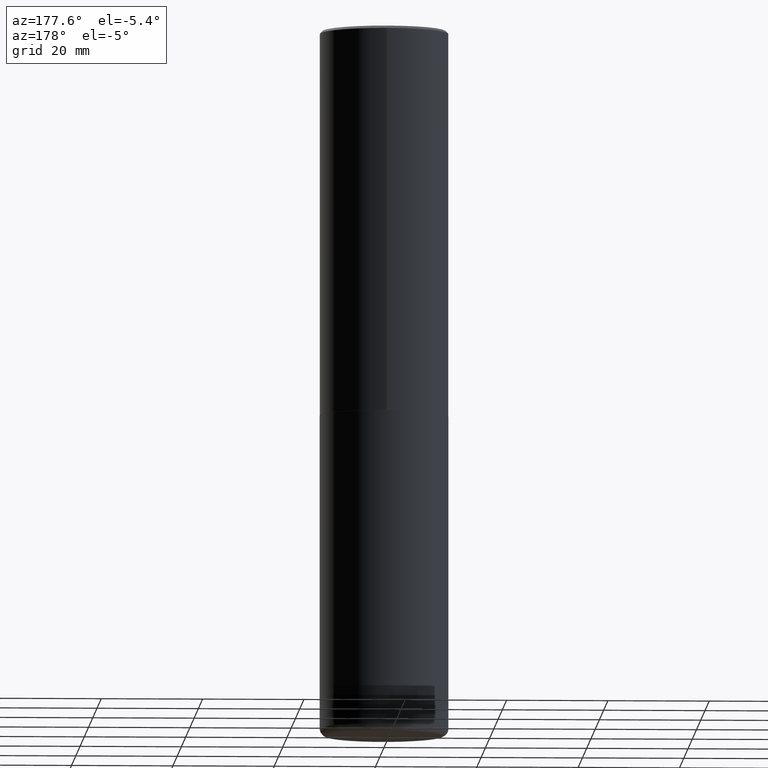
[diagram: clean part render]
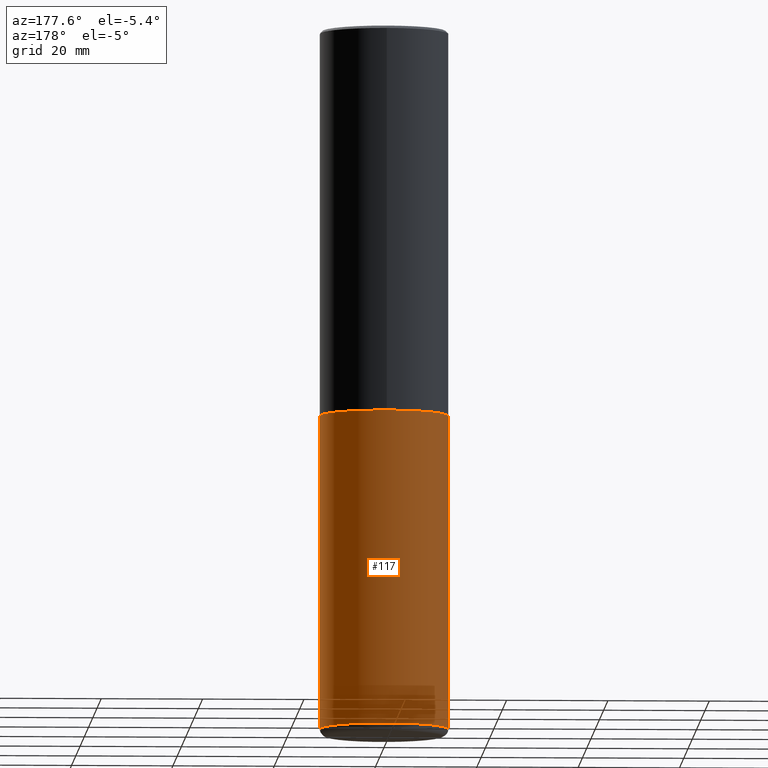
[diagram: same view with one face highlighted and labeled with its STEP entity id]
A machine part, auxiliary view. The second image highlights one B-rep face of the part: STEP entity #117.
In plain terms, the highlighted cylindrical surface (partial cylindrical patch) has radius 12.7 mm, axis along (-0, 0, 1).
Its self-contained STEP definition (entity closure, byte-faithful):
#2 = ORIENTED_EDGE ( 'NONE', *, *, #126, .T. ) ;
#10 = CARTESIAN_POINT ( 'NONE',  ( 0.5000000000000000000, -3.491481338843133355E-15, 2.438088387897967896E-29 ) ) ;
#36 = VERTEX_POINT ( 'NONE', #174 ) ;
#38 = CIRCLE ( 'NONE', #93, 0.5000000000000001110 ) ;
#48 = DIRECTION ( 'NONE',  ( 1.000000000000000000, -6.982962677686269077E-15, 0.000000000000000000 ) ) ;
#67 = FACE_OUTER_BOUND ( 'NONE', #313, .T. ) ;
#69 = ORIENTED_EDGE ( 'NONE', *, *, #187, .T. ) ;
#70 = CYLINDRICAL_SURFACE ( 'NONE', #136, 0.5000000000000000000 ) ;
#93 = AXIS2_PLACEMENT_3D ( 'NONE', #173, #270, #48 ) ;
#100 = CARTESIAN_POINT ( 'NONE',  ( 7.336406418555408669E-29, -1.047444401652943478E-14, -2.999999999999999556 ) ) ;
#101 = EDGE_CURVE ( 'NONE', #276, #361, #256, .T. ) ;
#117 = ADVANCED_FACE ( 'NONE', ( #67 ), #70, .T. ) ;
#126 = EDGE_CURVE ( 'NONE', #36, #361, #130, .T. ) ;
#128 = AXIS2_PLACEMENT_3D ( 'NONE', #100, #134, #133 ) ;
#130 = LINE ( 'NONE', #366, #302 ) ;
#133 = DIRECTION ( 'NONE',  ( 1.000000000000000000, -6.982962677686266711E-15, 0.000000000000000000 ) ) ;
#134 = DIRECTION ( 'NONE',  ( -2.445468806185136597E-29, 3.491481338843145583E-15, 1.000000000000000000 ) ) ;
#136 = AXIS2_PLACEMENT_3D ( 'NONE', #261, #262, #223 ) ;
#150 = CARTESIAN_POINT ( 'NONE',  ( -0.5000000000000000000, -1.118133757111757295E-14, -2.999999999999999556 ) ) ;
#158 = DIRECTION ( 'NONE',  ( -2.445468806185136877E-29, 3.491481338843145188E-15, 1.000000000000000000 ) ) ;
#168 = LINE ( 'NONE', #10, #304 ) ;
#173 = CARTESIAN_POINT ( 'NONE',  ( 1.330335030564714425E-28, -1.899365848330671298E-14, -5.439999999999999503 ) ) ;
#174 = CARTESIAN_POINT ( 'NONE',  ( -0.5000000000000002220, -1.544094480450621205E-14, -5.439999999999999503 ) ) ;
#176 = CARTESIAN_POINT ( 'NONE',  ( 0.5000000000000002220, -2.248513982214985265E-14, -5.439999999999999503 ) ) ;
#187 = EDGE_CURVE ( 'NONE', #255, #36, #38, .T. ) ;
#192 = ORIENTED_EDGE ( 'NONE', *, *, #216, .F. ) ;
#216 = EDGE_CURVE ( 'NONE', #255, #276, #168, .T. ) ;
#223 = DIRECTION ( 'NONE',  ( 1.000000000000000000, -6.982962677686266711E-15, 4.876176775795935793E-29 ) ) ;
#255 = VERTEX_POINT ( 'NONE', #176 ) ;
#256 = CIRCLE ( 'NONE', #128, 0.5000000000000000000 ) ;
#261 = CARTESIAN_POINT ( 'NONE',  ( 0.000000000000000000, 0.000000000000000000, 0.000000000000000000 ) ) ;
#262 = DIRECTION ( 'NONE',  ( -2.445468806185136597E-29, 3.491481338843145583E-15, 1.000000000000000000 ) ) ;
#270 = DIRECTION ( 'NONE',  ( -2.445468806185136597E-29, 3.491481338843145583E-15, 1.000000000000000000 ) ) ;
#276 = VERTEX_POINT ( 'NONE', #368 ) ;
#302 = VECTOR ( 'NONE', #158, 39.37007874015748143 ) ;
#304 = VECTOR ( 'NONE', #402, 39.37007874015748143 ) ;
#306 = ORIENTED_EDGE ( 'NONE', *, *, #101, .F. ) ;
#313 = EDGE_LOOP ( 'NONE', ( #69, #2, #306, #192 ) ) ;
#361 = VERTEX_POINT ( 'NONE', #150 ) ;
#366 = CARTESIAN_POINT ( 'NONE',  ( -0.5000000000000000000, 3.552713678800500929E-15, -2.459467545127452891E-29 ) ) ;
#368 = CARTESIAN_POINT ( 'NONE',  ( 0.5000000000000000000, -1.396592535537256813E-14, -2.999999999999999556 ) ) ;
#402 = DIRECTION ( 'NONE',  ( -2.445468806185136877E-29, 3.491481338843145188E-15, 1.000000000000000000 ) ) ;